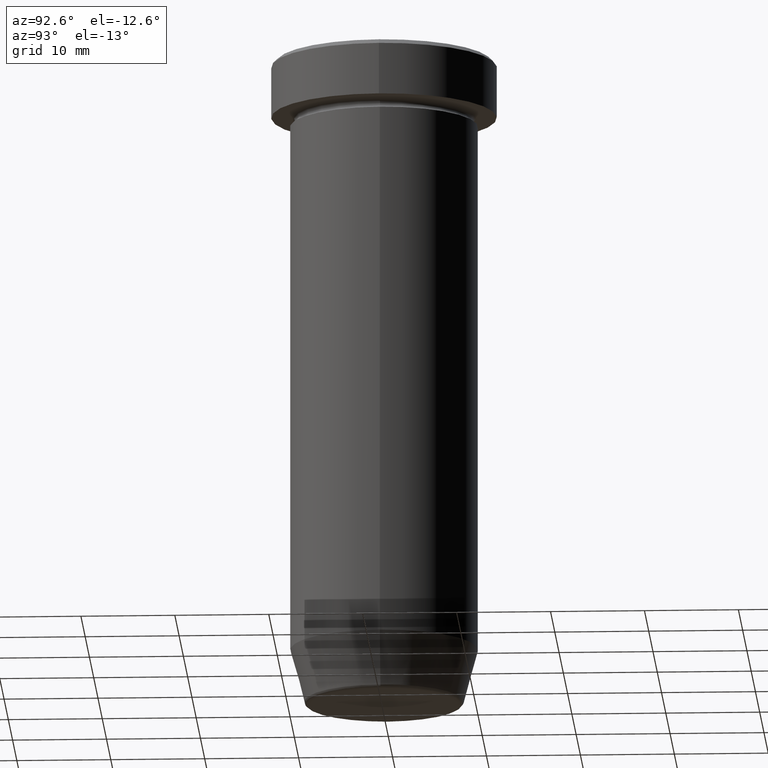
[diagram: clean part render]
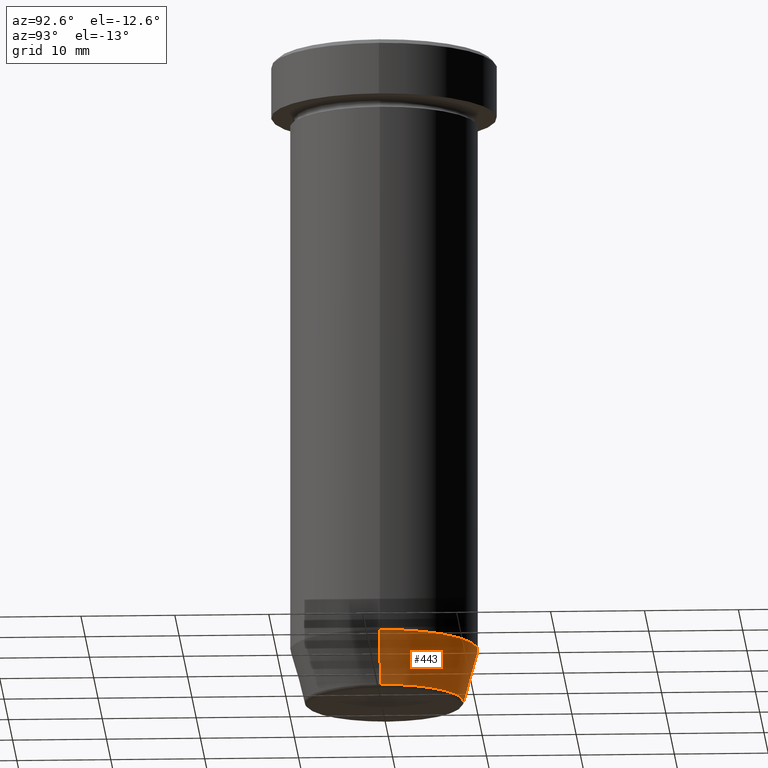
[diagram: same view with one face highlighted and labeled with its STEP entity id]
A machine part, auxiliary view. The second image highlights one B-rep face of the part: STEP entity #443.
In plain terms, the highlighted conical surface has half-angle 15 deg.
Its self-contained STEP definition (entity closure, byte-faithful):
#5 = CARTESIAN_POINT ( 'NONE',  ( -9.999999999999998224, 1.224646799147353059E-15, -64.00000000000000000 ) ) ;
#11 = LINE ( 'NONE', #98, #538 ) ;
#30 = CARTESIAN_POINT ( 'NONE',  ( 0.000000000000000000, 0.000000000000000000, -69.62940952255125637 ) ) ;
#37 = DIRECTION ( 'NONE',  ( -1.000000000000000000, 0.000000000000000000, 0.000000000000000000 ) ) ;
#42 = LINE ( 'NONE', #372, #497 ) ;
#57 = VERTEX_POINT ( 'NONE', #326 ) ;
#69 = CARTESIAN_POINT ( 'NONE',  ( 9.999999999999998224, 0.000000000000000000, -64.00000000000000000 ) ) ;
#82 = FACE_OUTER_BOUND ( 'NONE', #204, .T. ) ;
#98 = CARTESIAN_POINT ( 'NONE',  ( 8.392304845413260495, 0.000000000000000000, -70.00000000000000000 ) ) ;
#167 = DIRECTION ( 'NONE',  ( -0.000000000000000000, -0.000000000000000000, 1.000000000000000000 ) ) ;
#173 = CONICAL_SURFACE ( 'NONE', #471, 8.392304845413260495, 0.2617993877991495744 ) ;
#183 = CIRCLE ( 'NONE', #390, 8.491604264568310967 ) ;
#204 = EDGE_LOOP ( 'NONE', ( #553, #494, #392, #503 ) ) ;
#211 = DIRECTION ( 'NONE',  ( -0.000000000000000000, -0.000000000000000000, 1.000000000000000000 ) ) ;
#253 = CARTESIAN_POINT ( 'NONE',  ( 8.491604264568310967, 0.000000000000000000, -69.62940952255125637 ) ) ;
#276 = EDGE_CURVE ( 'NONE', #57, #347, #42, .T. ) ;
#279 = DIRECTION ( 'NONE',  ( 1.000000000000000000, 0.000000000000000000, 0.000000000000000000 ) ) ;
#282 = DIRECTION ( 'NONE',  ( 0.2588190451025209060, 0.000000000000000000, 0.9659258262890682012 ) ) ;
#316 = EDGE_CURVE ( 'NONE', #501, #327, #11, .T. ) ;
#324 = CARTESIAN_POINT ( 'NONE',  ( 0.000000000000000000, 0.000000000000000000, -70.00000000000000000 ) ) ;
#326 = CARTESIAN_POINT ( 'NONE',  ( -8.491604264568310967, 1.132284198685156190E-15, -69.62940952255125637 ) ) ;
#327 = VERTEX_POINT ( 'NONE', #69 ) ;
#336 = EDGE_CURVE ( 'NONE', #327, #347, #567, .T. ) ;
#347 = VERTEX_POINT ( 'NONE', #5 ) ;
#372 = CARTESIAN_POINT ( 'NONE',  ( -8.392304845413260495, 1.027760926640417114E-15, -70.00000000000000000 ) ) ;
#378 = AXIS2_PLACEMENT_3D ( 'NONE', #520, #167, #468 ) ;
#390 = AXIS2_PLACEMENT_3D ( 'NONE', #30, #211, #37 ) ;
#392 = ORIENTED_EDGE ( 'NONE', *, *, #336, .F. ) ;
#425 = DIRECTION ( 'NONE',  ( -0.2588190451025209060, 3.169619151431766790E-17, 0.9659258262890682012 ) ) ;
#443 = ADVANCED_FACE ( 'NONE', ( #82 ), #173, .T. ) ;
#468 = DIRECTION ( 'NONE',  ( 1.000000000000000000, 0.000000000000000000, 0.000000000000000000 ) ) ;
#471 = AXIS2_PLACEMENT_3D ( 'NONE', #324, #531, #279 ) ;
#494 = ORIENTED_EDGE ( 'NONE', *, *, #276, .T. ) ;
#497 = VECTOR ( 'NONE', #425, 1000.000000000000000 ) ;
#501 = VERTEX_POINT ( 'NONE', #253 ) ;
#503 = ORIENTED_EDGE ( 'NONE', *, *, #316, .F. ) ;
#520 = CARTESIAN_POINT ( 'NONE',  ( 0.000000000000000000, 0.000000000000000000, -64.00000000000000000 ) ) ;
#531 = DIRECTION ( 'NONE',  ( -0.000000000000000000, -0.000000000000000000, 1.000000000000000000 ) ) ;
#538 = VECTOR ( 'NONE', #282, 1000.000000000000000 ) ;
#551 = EDGE_CURVE ( 'NONE', #501, #57, #183, .T. ) ;
#553 = ORIENTED_EDGE ( 'NONE', *, *, #551, .T. ) ;
#567 = CIRCLE ( 'NONE', #378, 9.999999999999998224 ) ;